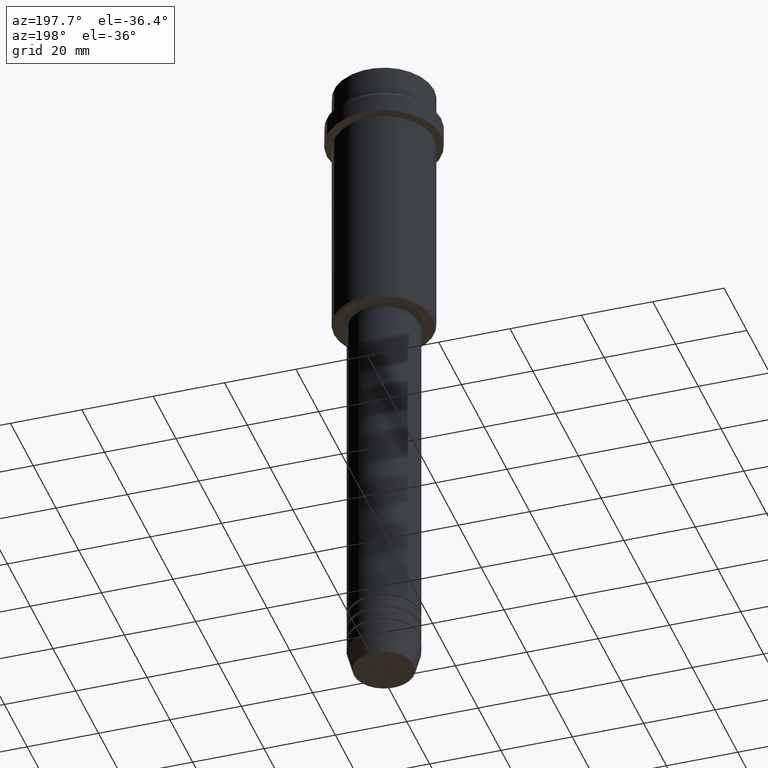
[diagram: clean part render]
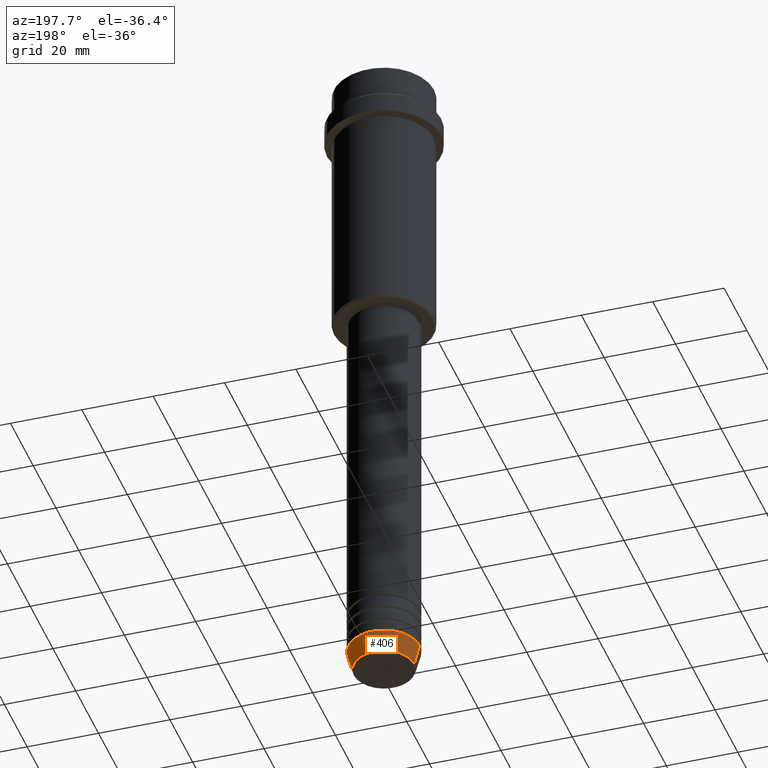
[diagram: same view with one face highlighted and labeled with its STEP entity id]
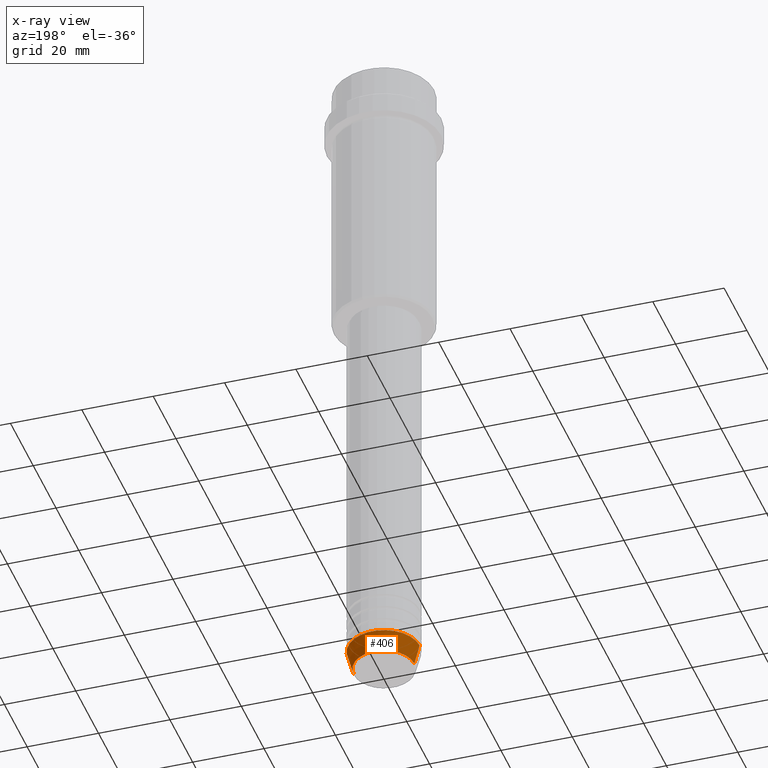
[diagram: x-ray of the same camera — body ghosted, the highlighted face saturated]
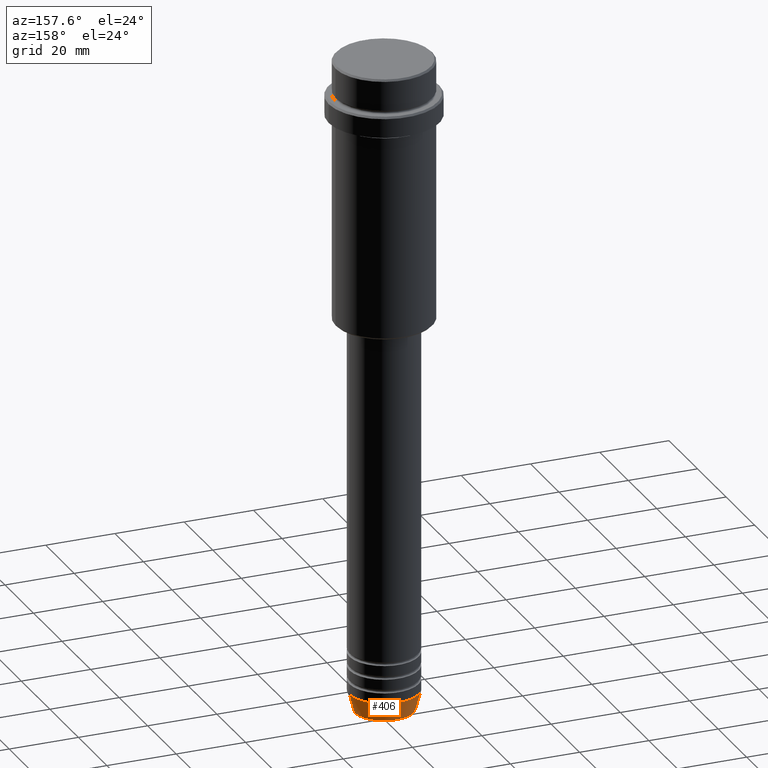
[diagram: same view with one face highlighted and labeled with its STEP entity id]
A machine part, auxiliary view. The second image highlights one B-rep face of the part: STEP entity #406.
The next image is the same camera in x-ray: the body ghosted, the highlighted face saturated — about 0% of this face is hidden behind the body in this view.
A second angle (auxiliary view) of the same face is appended — the face is thin or edge-on in the first view.
In plain terms, the highlighted conical surface has half-angle 15 deg.
Its self-contained STEP definition (entity closure, byte-faithful):
#35 = DIRECTION ( 'NONE',  ( 0.2588190451025211281, 0.000000000000000000, 0.9659258262890680902 ) ) ;
#53 = CARTESIAN_POINT ( 'NONE',  ( 0.000000000000000000, 0.000000000000000000, -184.0000000000000000 ) ) ;
#131 = EDGE_LOOP ( 'NONE', ( #507, #725, #1390, #134 ) ) ;
#134 = ORIENTED_EDGE ( 'NONE', *, *, #1308, .F. ) ;
#164 = CONICAL_SURFACE ( 'NONE', #996, 10.00000000000000000, 0.2617993877991498519 ) ;
#239 = CIRCLE ( 'NONE', #1156, 8.491604264568309191 ) ;
#292 = CARTESIAN_POINT ( 'NONE',  ( 10.00000000000000000, 0.000000000000000000, -184.0000000000000000 ) ) ;
#294 = DIRECTION ( 'NONE',  ( 1.000000000000000000, 0.000000000000000000, 0.000000000000000000 ) ) ;
#297 = FACE_OUTER_BOUND ( 'NONE', #131, .T. ) ;
#323 = LINE ( 'NONE', #449, #930 ) ;
#330 = CARTESIAN_POINT ( 'NONE',  ( -8.491604264568309191, 1.132284198685156387E-15, -189.6294095225512706 ) ) ;
#370 = DIRECTION ( 'NONE',  ( 1.000000000000000000, 0.000000000000000000, 0.000000000000000000 ) ) ;
#390 = DIRECTION ( 'NONE',  ( -0.000000000000000000, -0.000000000000000000, 1.000000000000000000 ) ) ;
#406 = ADVANCED_FACE ( 'NONE', ( #297 ), #164, .T. ) ;
#449 = CARTESIAN_POINT ( 'NONE',  ( 10.00000000000000000, 0.000000000000000000, -184.0000000000000000 ) ) ;
#507 = ORIENTED_EDGE ( 'NONE', *, *, #575, .T. ) ;
#525 = DIRECTION ( 'NONE',  ( -0.2588190451025211281, 3.169619151431769872E-17, 0.9659258262890680902 ) ) ;
#564 = VECTOR ( 'NONE', #525, 1000.000000000000114 ) ;
#575 = EDGE_CURVE ( 'NONE', #1093, #714, #239, .T. ) ;
#634 = CARTESIAN_POINT ( 'NONE',  ( -10.00000000000000000, 1.224646799147353256E-15, -184.0000000000000000 ) ) ;
#635 = CIRCLE ( 'NONE', #741, 10.00000000000000000 ) ;
#714 = VERTEX_POINT ( 'NONE', #330 ) ;
#725 = ORIENTED_EDGE ( 'NONE', *, *, #1080, .T. ) ;
#730 = VERTEX_POINT ( 'NONE', #292 ) ;
#741 = AXIS2_PLACEMENT_3D ( 'NONE', #53, #914, #370 ) ;
#825 = DIRECTION ( 'NONE',  ( 1.000000000000000000, 0.000000000000000000, 0.000000000000000000 ) ) ;
#839 = CARTESIAN_POINT ( 'NONE',  ( 0.000000000000000000, 0.000000000000000000, -189.6294095225512706 ) ) ;
#861 = CARTESIAN_POINT ( 'NONE',  ( -10.00000000000000000, 1.224646799147353256E-15, -184.0000000000000000 ) ) ;
#914 = DIRECTION ( 'NONE',  ( -0.000000000000000000, -0.000000000000000000, 1.000000000000000000 ) ) ;
#930 = VECTOR ( 'NONE', #35, 1000.000000000000114 ) ;
#965 = CARTESIAN_POINT ( 'NONE',  ( 8.491604264568309191, 0.000000000000000000, -189.6294095225512706 ) ) ;
#996 = AXIS2_PLACEMENT_3D ( 'NONE', #1378, #390, #825 ) ;
#1065 = VERTEX_POINT ( 'NONE', #861 ) ;
#1077 = DIRECTION ( 'NONE',  ( -0.000000000000000000, -0.000000000000000000, 1.000000000000000000 ) ) ;
#1078 = LINE ( 'NONE', #634, #564 ) ;
#1080 = EDGE_CURVE ( 'NONE', #714, #1065, #1078, .T. ) ;
#1093 = VERTEX_POINT ( 'NONE', #965 ) ;
#1156 = AXIS2_PLACEMENT_3D ( 'NONE', #839, #1077, #294 ) ;
#1308 = EDGE_CURVE ( 'NONE', #1093, #730, #323, .T. ) ;
#1378 = CARTESIAN_POINT ( 'NONE',  ( 0.000000000000000000, 0.000000000000000000, -184.0000000000000000 ) ) ;
#1390 = ORIENTED_EDGE ( 'NONE', *, *, #1408, .F. ) ;
#1408 = EDGE_CURVE ( 'NONE', #730, #1065, #635, .T. ) ;